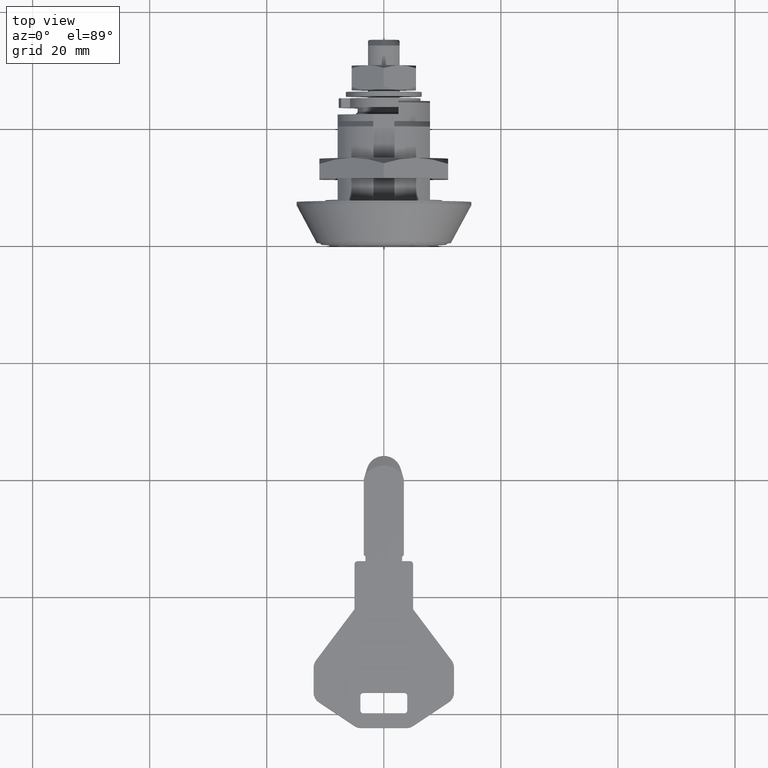
[diagram: clean part render]
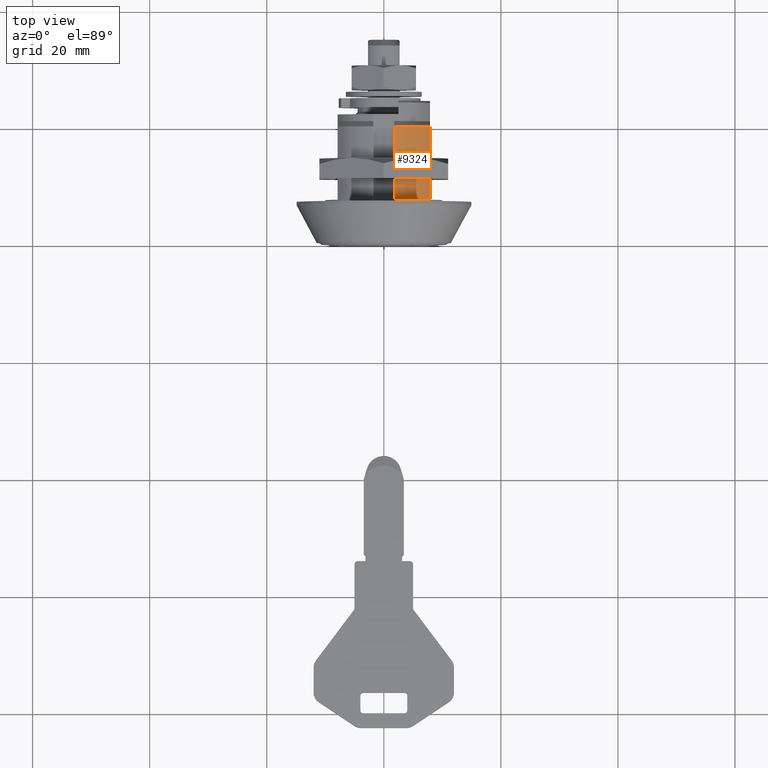
[diagram: same view with one face highlighted and labeled with its STEP entity id]
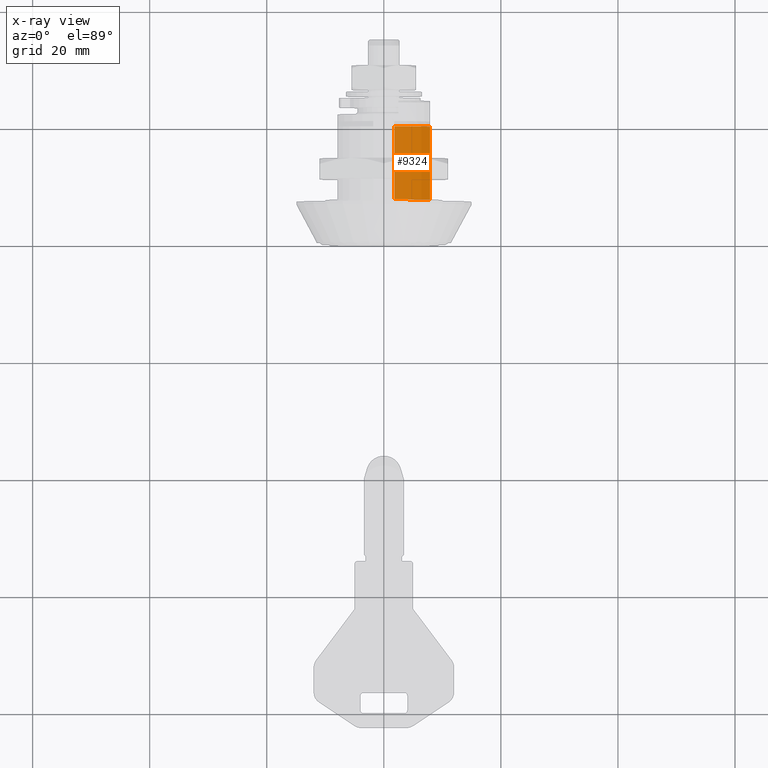
[diagram: x-ray of the same camera — body ghosted, the highlighted face saturated]
A machine part, top view. The second image highlights one B-rep face of the part: STEP entity #9324.
The next image is the same camera in x-ray: the body ghosted, the highlighted face saturated — about 0% of this face is hidden behind the body in this view.
In plain terms, the highlighted face is a freeform B-spline surface patch.
Its self-contained STEP definition (entity closure, byte-faithful):
#8428=CARTESIAN_POINT('',(7.600000000000000,-1.800000000272080,9.327915093627299));
#8429=VERTEX_POINT('',#8428);
#8435=CARTESIAN_POINT('',(20.100000000000001,-1.800000000272080,9.327915093627299));
#8436=VERTEX_POINT('',#8435);
#8437=CARTESIAN_POINT('',(20.100000000000001,-1.800000000272080,9.327915093627299));
#8438=CARTESIAN_POINT('',(7.600000000000000,-1.800000000272080,9.327915093627299));
#8439=QUASI_UNIFORM_CURVE('',1,(#8437,#8438),.UNSPECIFIED.,.F.,.U.);
#8440=EDGE_CURVE('',#8436,#8429,#8439,.T.);
#8640=CARTESIAN_POINT('',(20.100000000000001,-7.899999967652239,5.276362431469750));
#8641=VERTEX_POINT('',#8640);
#8653=CARTESIAN_POINT('',(7.600000000000000,-7.899999967652239,5.276362431469750));
#8654=VERTEX_POINT('',#8653);
#8655=CARTESIAN_POINT('',(20.100000000000001,-7.899999967652239,5.276362431469750));
#8656=CARTESIAN_POINT('',(7.600000000000000,-7.899999967652239,5.276362431469750));
#8657=QUASI_UNIFORM_CURVE('',1,(#8655,#8656),.UNSPECIFIED.,.F.,.U.);
#8658=EDGE_CURVE('',#8641,#8654,#8657,.T.);
#9280=CARTESIAN_POINT('',(20.412500000000001,-1.447020176770563,9.389149727367110));
#9281=CARTESIAN_POINT('',(7.279687499999998,-1.447020176770563,9.389149727367110));
#9282=CARTESIAN_POINT('',(20.412499999999994,-5.796034204853426,8.718896165497839));
#9283=CARTESIAN_POINT('',(7.279687499999998,-5.796034204853426,8.718896165497839));
#9284=CARTESIAN_POINT('',(20.412500000000009,-8.097309598317249,4.968256964361862));
#9285=CARTESIAN_POINT('',(7.279687499999997,-8.097309598317249,4.968256964361862));
#9293=(BOUNDED_SURFACE()B_SPLINE_SURFACE(1,2,((#9280,#9282,#9284),(#9281,#9283,#9285)),.UNSPECIFIED.,.F.,.F.,.U.)B_SPLINE_SURFACE_WITH_KNOTS((2,2),(3,3),(0.0,13.132812500000011),(0.0,8.373354967671816),.UNSPECIFIED.)GEOMETRIC_REPRESENTATION_ITEM()RATIONAL_B_SPLINE_SURFACE(((1.0,0.903393649250549,0.991218879131500),(1.0,0.903393649250549,0.991218879131500)))REPRESENTATION_ITEM('')SURFACE());
#9294=CARTESIAN_POINT('',(20.100000000000001,-7.899999967652239,5.276362431469750));
#9295=CARTESIAN_POINT('',(20.099999999999994,-5.696138078202709,8.576080576380919));
#9296=CARTESIAN_POINT('',(20.100000000000001,-1.800000000272082,9.327915093627297));
#9304=(BOUNDED_CURVE()B_SPLINE_CURVE(2,(#9294,#9295,#9296),.UNSPECIFIED.,.F.,.U.)CURVE()GEOMETRIC_REPRESENTATION_ITEM()QUASI_UNIFORM_CURVE()RATIONAL_B_SPLINE_CURVE((1.0,0.922742692173462,1.0))REPRESENTATION_ITEM(''));
#9305=EDGE_CURVE('',#8641,#8436,#9304,.T.);
#9306=ORIENTED_EDGE('',*,*,#9305,.T.);
#9307=ORIENTED_EDGE('',*,*,#8440,.T.);
#9308=CARTESIAN_POINT('',(7.600000000000000,-7.899999967652239,5.276362431469750));
#9309=CARTESIAN_POINT('',(7.600000000000001,-5.696138078202709,8.576080576380919));
#9310=CARTESIAN_POINT('',(7.600000000000000,-1.800000000272082,9.327915093627297));
#9318=(BOUNDED_CURVE()B_SPLINE_CURVE(2,(#9308,#9309,#9310),.UNSPECIFIED.,.F.,.U.)CURVE()GEOMETRIC_REPRESENTATION_ITEM()QUASI_UNIFORM_CURVE()RATIONAL_B_SPLINE_CURVE((1.0,0.922742692173462,1.0))REPRESENTATION_ITEM(''));
#9319=EDGE_CURVE('',#8654,#8429,#9318,.T.);
#9320=ORIENTED_EDGE('',*,*,#9319,.F.);
#9321=ORIENTED_EDGE('',*,*,#8658,.F.);
#9322=EDGE_LOOP('',(#9306,#9307,#9320,#9321));
#9323=FACE_OUTER_BOUND('',#9322,.T.);
#9324=ADVANCED_FACE('',(#9323),#9293,.T.);